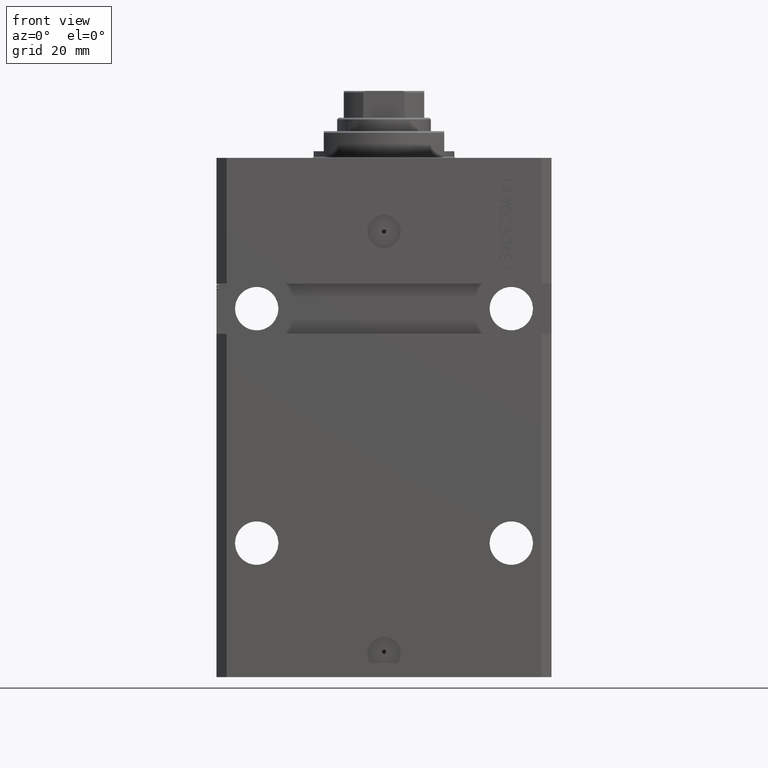
[diagram: clean part render]
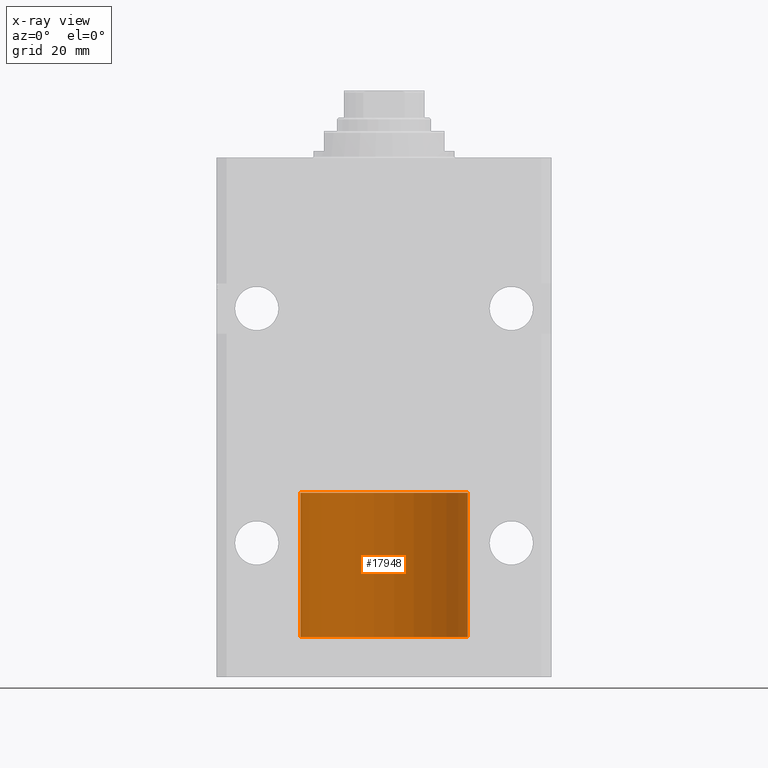
[diagram: x-ray — body ghosted, one internal face saturated and labeled with its STEP entity id]
A machine part, front view, then the same camera in x-ray: the body is ghosted and one INTERNAL B-rep face — a face not visible from any outside direction — is saturated and labeled: STEP entity #17948.
In plain terms, the highlighted cylindrical surface (partial cylindrical patch) has radius 25 mm, axis along (-0, -0, -1).
Its self-contained STEP definition (entity closure, byte-faithful):
#956 = DIRECTION ( 'NONE',  ( -1.000000000000000000, 0.000000000000000000, 0.000000000000000000 ) ) ;
#1672 = DIRECTION ( 'NONE',  ( -0.000000000000000000, -0.000000000000000000, -1.000000000000000000 ) ) ;
#3254 = DIRECTION ( 'NONE',  ( 1.000000000000000000, 0.000000000000000000, 0.000000000000000000 ) ) ;
#3559 = DIRECTION ( 'NONE',  ( 0.000000000000000000, 0.000000000000000000, 1.000000000000000000 ) ) ;
#5587 = EDGE_CURVE ( 'NONE', #18698, #18784, #11978, .T. ) ;
#8092 = ORIENTED_EDGE ( 'NONE', *, *, #23710, .T. ) ;
#8318 = DIRECTION ( 'NONE',  ( -0.000000000000000000, -0.000000000000000000, -1.000000000000000000 ) ) ;
#10753 = CARTESIAN_POINT ( 'NONE',  ( 25.00000000000000000, 3.061616997868383043E-15, 43.10000000000000142 ) ) ;
#11141 = CARTESIAN_POINT ( 'NONE',  ( -25.00000000000000000, 0.000000000000000000, 43.10000000000000142 ) ) ;
#11978 = LINE ( 'NONE', #41234, #33834 ) ;
#12401 = CIRCLE ( 'NONE', #44279, 25.00000000000000000 ) ;
#13587 = ORIENTED_EDGE ( 'NONE', *, *, #5587, .F. ) ;
#14427 = LINE ( 'NONE', #10753, #37179 ) ;
#14976 = CARTESIAN_POINT ( 'NONE',  ( 25.00000000000000000, 3.061616997868383043E-15, 43.10000000000000142 ) ) ;
#15210 = AXIS2_PLACEMENT_3D ( 'NONE', #31405, #1672, #956 ) ;
#17948 = ADVANCED_FACE ( 'NONE', ( #38717 ), #19468, .T. ) ;
#18170 = DIRECTION ( 'NONE',  ( 1.000000000000000000, 0.000000000000000000, 0.000000000000000000 ) ) ;
#18698 = VERTEX_POINT ( 'NONE', #11141 ) ;
#18784 = VERTEX_POINT ( 'NONE', #27229 ) ;
#19089 = ORIENTED_EDGE ( 'NONE', *, *, #31285, .F. ) ;
#19468 = CYLINDRICAL_SURFACE ( 'NONE', #15210, 25.00000000000000000 ) ;
#21813 = CARTESIAN_POINT ( 'NONE',  ( 25.00000000000000000, 3.061616997868383043E-15, 0.000000000000000000 ) ) ;
#22321 = CARTESIAN_POINT ( 'NONE',  ( 0.000000000000000000, 0.000000000000000000, 43.10000000000000142 ) ) ;
#23710 = EDGE_CURVE ( 'NONE', #34134, #36768, #14427, .T. ) ;
#25094 = EDGE_LOOP ( 'NONE', ( #19089, #8092, #41433, #13587 ) ) ;
#25634 = DIRECTION ( 'NONE',  ( -0.000000000000000000, -0.000000000000000000, -1.000000000000000000 ) ) ;
#26565 = EDGE_CURVE ( 'NONE', #36768, #18784, #36489, .T. ) ;
#27229 = CARTESIAN_POINT ( 'NONE',  ( -25.00000000000000000, 0.000000000000000000, 0.000000000000000000 ) ) ;
#31285 = EDGE_CURVE ( 'NONE', #34134, #18698, #12401, .T. ) ;
#31405 = CARTESIAN_POINT ( 'NONE',  ( 0.000000000000000000, 0.000000000000000000, 43.10000000000000142 ) ) ;
#32743 = CARTESIAN_POINT ( 'NONE',  ( 0.000000000000000000, 0.000000000000000000, 0.000000000000000000 ) ) ;
#33834 = VECTOR ( 'NONE', #8318, 1000.000000000000000 ) ;
#34134 = VERTEX_POINT ( 'NONE', #14976 ) ;
#36489 = CIRCLE ( 'NONE', #42675, 25.00000000000000000 ) ;
#36640 = DIRECTION ( 'NONE',  ( 0.000000000000000000, 0.000000000000000000, 1.000000000000000000 ) ) ;
#36768 = VERTEX_POINT ( 'NONE', #21813 ) ;
#37179 = VECTOR ( 'NONE', #25634, 1000.000000000000000 ) ;
#38717 = FACE_OUTER_BOUND ( 'NONE', #25094, .T. ) ;
#41234 = CARTESIAN_POINT ( 'NONE',  ( -25.00000000000000000, 0.000000000000000000, 43.10000000000000142 ) ) ;
#41433 = ORIENTED_EDGE ( 'NONE', *, *, #26565, .T. ) ;
#42675 = AXIS2_PLACEMENT_3D ( 'NONE', #32743, #36640, #3254 ) ;
#44279 = AXIS2_PLACEMENT_3D ( 'NONE', #22321, #3559, #18170 ) ;